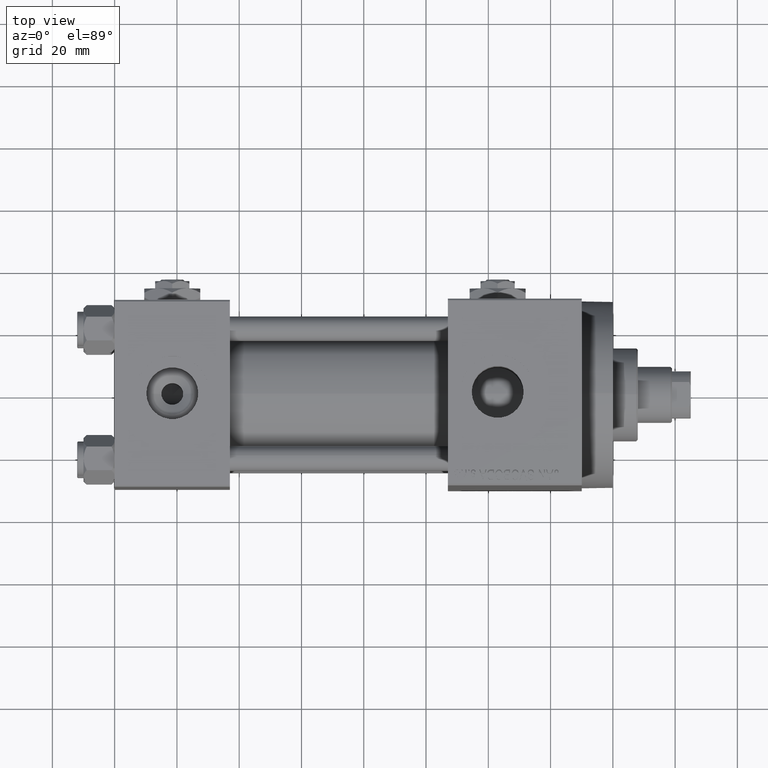
[diagram: clean part render]
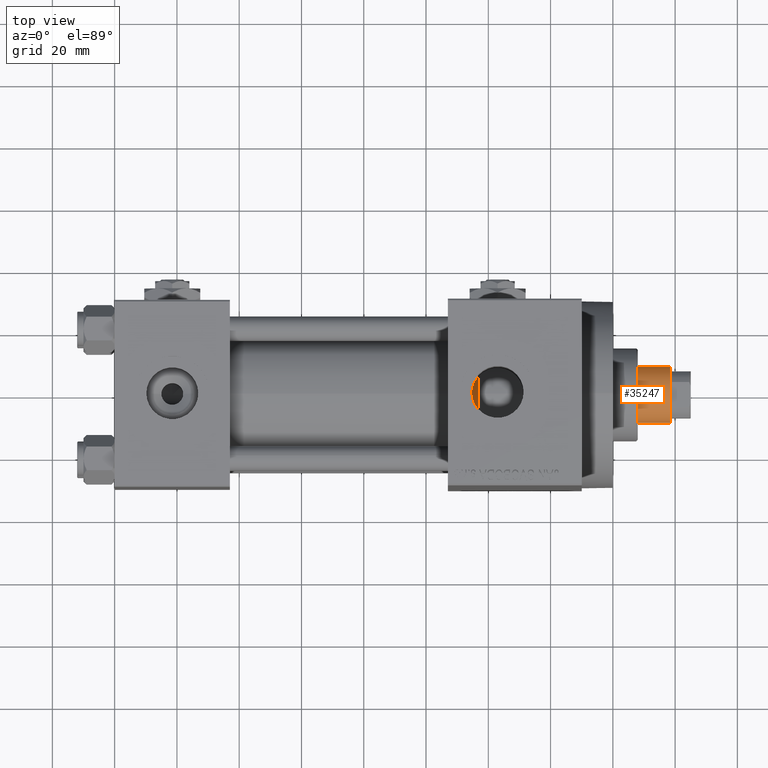
[diagram: same view with one face highlighted and labeled with its STEP entity id]
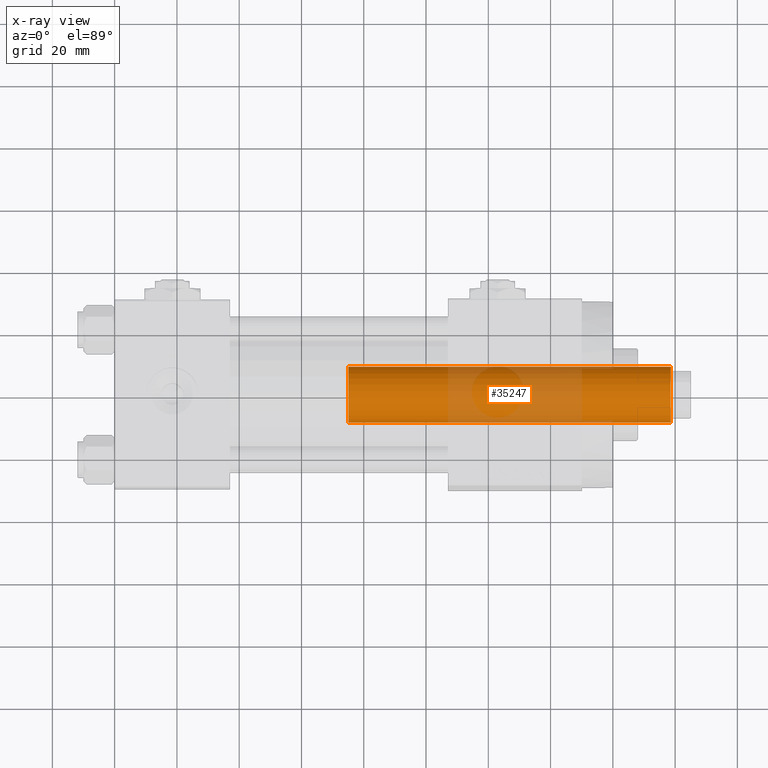
[diagram: x-ray of the same camera — body ghosted, the highlighted face saturated]
A machine part, top view. The second image highlights one B-rep face of the part: STEP entity #35247.
The next image is the same camera in x-ray: the body ghosted, the highlighted face saturated — about 31% of this face is hidden behind the body in this view.
In plain terms, the highlighted cylindrical surface (edge-blend (fillet) strip) has radius 9 mm, axis along (-1, 0, 0).
Its self-contained STEP definition (entity closure, byte-faithful):
#1424 = ORIENTED_EDGE ( 'NONE', *, *, #4815, .T. ) ;
#4815 = EDGE_CURVE ( 'NONE', #21553, #16409, #22143, .T. ) ;
#6862 = CARTESIAN_POINT ( 'NONE',  ( 0.000000000000000000, 0.000000000000000000, 141.5000000000000853 ) ) ;
#7107 = AXIS2_PLACEMENT_3D ( 'NONE', #13956, #47855, #16942 ) ;
#7964 = EDGE_CURVE ( 'NONE', #44863, #21553, #27431, .T. ) ;
#8238 = CARTESIAN_POINT ( 'NONE',  ( -9.000000000000000000, 0.000000000000000000, 142.0000000000000000 ) ) ;
#11803 = VERTEX_POINT ( 'NONE', #38085 ) ;
#12242 = DIRECTION ( 'NONE',  ( -0.000000000000000000, -0.000000000000000000, -1.000000000000000000 ) ) ;
#12310 = CIRCLE ( 'NONE', #38555, 9.000000000000000000 ) ;
#13956 = CARTESIAN_POINT ( 'NONE',  ( 0.000000000000000000, 0.000000000000000000, 142.0000000000000000 ) ) ;
#14785 = EDGE_CURVE ( 'NONE', #11803, #44863, #12310, .T. ) ;
#15985 = CARTESIAN_POINT ( 'NONE',  ( 0.000000000000000000, 0.000000000000000000, 38.00000000000000000 ) ) ;
#16409 = VERTEX_POINT ( 'NONE', #26940 ) ;
#16942 = DIRECTION ( 'NONE',  ( -1.000000000000000000, 0.000000000000000000, 0.000000000000000000 ) ) ;
#18219 = EDGE_LOOP ( 'NONE', ( #24953, #24996, #24695, #1424 ) ) ;
#19349 = VECTOR ( 'NONE', #12242, 1000.000000000000000 ) ;
#21553 = VERTEX_POINT ( 'NONE', #24454 ) ;
#22143 = CIRCLE ( 'NONE', #41249, 9.000000000000000000 ) ;
#24454 = CARTESIAN_POINT ( 'NONE',  ( -9.000000000000000000, 0.000000000000000000, 38.00000000000000000 ) ) ;
#24695 = ORIENTED_EDGE ( 'NONE', *, *, #7964, .T. ) ;
#24953 = ORIENTED_EDGE ( 'NONE', *, *, #40430, .F. ) ;
#24996 = ORIENTED_EDGE ( 'NONE', *, *, #14785, .T. ) ;
#26940 = CARTESIAN_POINT ( 'NONE',  ( 9.000000000000000000, 1.102182119232617517E-15, 38.00000000000000000 ) ) ;
#27431 = LINE ( 'NONE', #8238, #19349 ) ;
#31905 = DIRECTION ( 'NONE',  ( -0.000000000000000000, -0.000000000000000000, -1.000000000000000000 ) ) ;
#35247 = ADVANCED_FACE ( 'NONE', ( #44111 ), #44362, .T. ) ;
#37029 = DIRECTION ( 'NONE',  ( 1.000000000000000000, 0.000000000000000000, 0.000000000000000000 ) ) ;
#38085 = CARTESIAN_POINT ( 'NONE',  ( 9.000000000000000000, 1.102182119232617517E-15, 141.5000000000000853 ) ) ;
#38555 = AXIS2_PLACEMENT_3D ( 'NONE', #6862, #45505, #37029 ) ;
#40430 = EDGE_CURVE ( 'NONE', #11803, #16409, #42905, .T. ) ;
#41249 = AXIS2_PLACEMENT_3D ( 'NONE', #15985, #41910, #46395 ) ;
#41910 = DIRECTION ( 'NONE',  ( 0.000000000000000000, 0.000000000000000000, 1.000000000000000000 ) ) ;
#42598 = CARTESIAN_POINT ( 'NONE',  ( -9.000000000000000000, 0.000000000000000000, 141.5000000000000853 ) ) ;
#42905 = LINE ( 'NONE', #47618, #46296 ) ;
#44111 = FACE_OUTER_BOUND ( 'NONE', #18219, .T. ) ;
#44362 = CYLINDRICAL_SURFACE ( 'NONE', #7107, 9.000000000000000000 ) ;
#44863 = VERTEX_POINT ( 'NONE', #42598 ) ;
#45505 = DIRECTION ( 'NONE',  ( 0.000000000000000000, 0.000000000000000000, -1.000000000000000000 ) ) ;
#46296 = VECTOR ( 'NONE', #31905, 1000.000000000000000 ) ;
#46395 = DIRECTION ( 'NONE',  ( 1.000000000000000000, 0.000000000000000000, 0.000000000000000000 ) ) ;
#47618 = CARTESIAN_POINT ( 'NONE',  ( 9.000000000000000000, 1.102182119232617517E-15, 142.0000000000000000 ) ) ;
#47855 = DIRECTION ( 'NONE',  ( -0.000000000000000000, -0.000000000000000000, -1.000000000000000000 ) ) ;